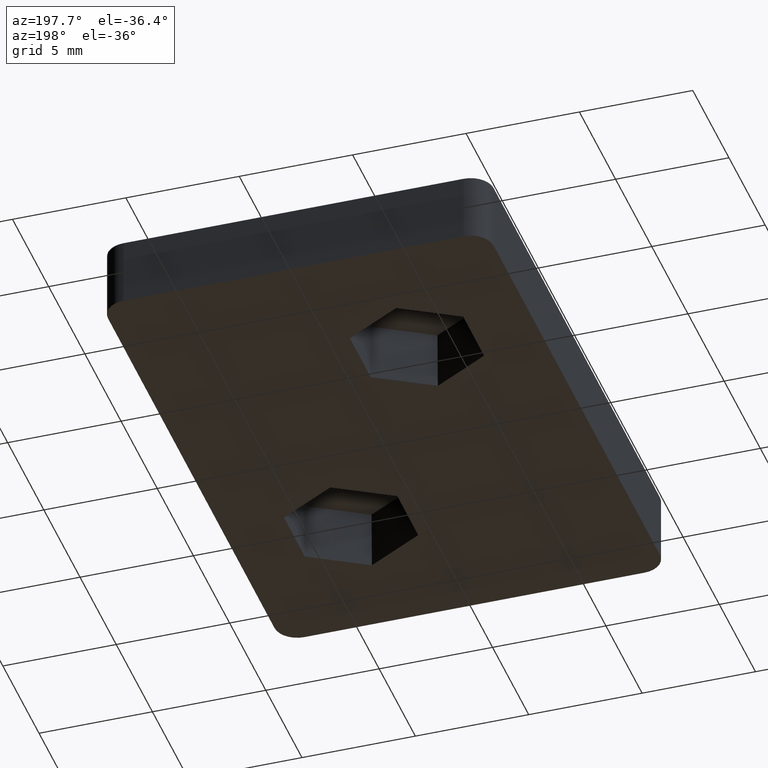
[diagram: clean part render]
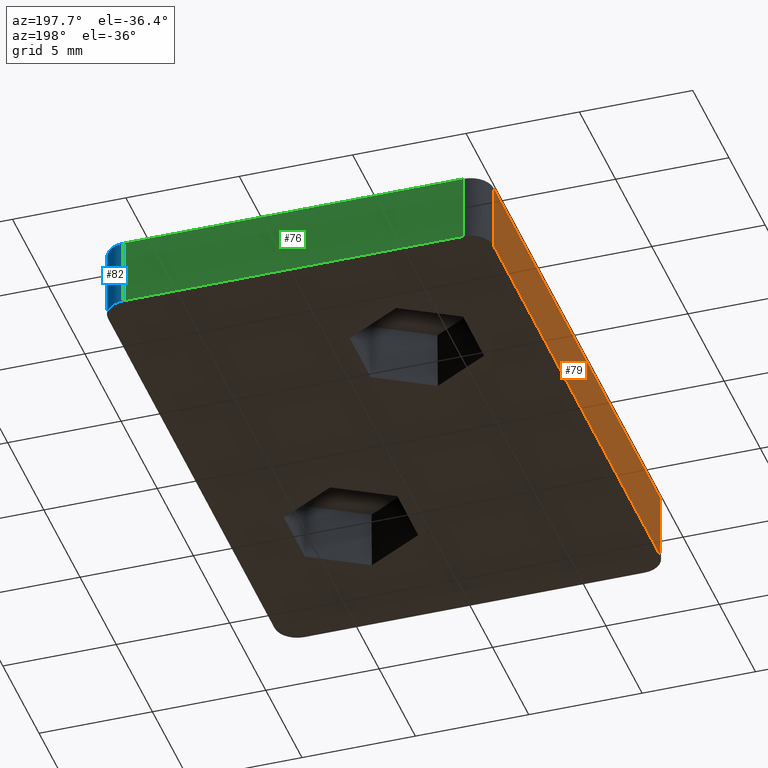
[diagram: same view with three faces highlighted in distinct colors, each labeled with its STEP entity id]
A machine part, auxiliary view with three faces highlighted in distinct colors.
Their STEP definitions:

[orange] entity #79 — the highlighted planar face has unit normal (-1, 0, 0).
#79 = ADVANCED_FACE( '', ( #152 ), #153, .T. );
#152 = FACE_OUTER_BOUND( '', #285, .T. );
#153 = PLANE( '', #286 );
#285 = EDGE_LOOP( '', ( #465, #466, #467, #468 ) );
#286 = AXIS2_PLACEMENT_3D( '', #469, #470, #471 );
#465 = ORIENTED_EDGE( '', *, *, #928, .F. );
#466 = ORIENTED_EDGE( '', *, *, #929, .T. );
#467 = ORIENTED_EDGE( '', *, *, #896, .T. );
#468 = ORIENTED_EDGE( '', *, *, #930, .F. );
#469 = CARTESIAN_POINT( '', ( -8.50000000000001, 11.5000000000000, -51.6702855111600 ) );
#470 = DIRECTION( '', ( -1.00000000000000, 2.74654234174752E-032, 1.12139804483894E-016 ) );
#471 = DIRECTION( '', ( -1.31688608025461E-033, -1.00000000000000, 2.33178017899756E-016 ) );
#896 = EDGE_CURVE( '', #1059, #1057, #1060, .T. );
#928 = EDGE_CURVE( '', #1119, #1120, #1121, .T. );
#929 = EDGE_CURVE( '', #1119, #1059, #1122, .T. );
#930 = EDGE_CURVE( '', #1120, #1057, #1123, .T. );
#1057 = VERTEX_POINT( '', #1317 );
#1059 = VERTEX_POINT( '', #1319 );
#1060 = LINE( '', #1320, #1321 );
#1119 = VERTEX_POINT( '', #1405 );
#1120 = VERTEX_POINT( '', #1406 );
#1121 = LINE( '', #1407, #1408 );
#1122 = LINE( '', #1409, #1410 );
#1123 = LINE( '', #1411, #1412 );
#1317 = CARTESIAN_POINT( '', ( -8.50000000000000, 11.5000000000000, 3.00000000000000 ) );
#1319 = CARTESIAN_POINT( '', ( -8.50000000000001, -11.5000000000000, 3.00000000000000 ) );
#1320 = CARTESIAN_POINT( '', ( -8.50000000000000, 5.38786138100378E-015, 3.00000000000000 ) );
#1321 = VECTOR( '', #1676, 1000.00000000000 );
#1405 = CARTESIAN_POINT( '', ( -8.50000000000001, -11.5000000000000, 7.04148653447866E-016 ) );
#1406 = CARTESIAN_POINT( '', ( -8.50000000000000, 11.5000000000000, -7.04148653447867E-016 ) );
#1407 = CARTESIAN_POINT( '', ( -8.50000000000000, 5.20417042793042E-015, -3.18653008620906E-031 ) );
#1408 = VECTOR( '', #1720, 1000.00000000000 );
#1409 = CARTESIAN_POINT( '', ( -8.50000000000001, -11.5000000000000, -51.6702855111600 ) );
#1410 = VECTOR( '', #1721, 1000.00000000000 );
#1411 = CARTESIAN_POINT( '', ( -8.50000000000000, 11.5000000000000, -51.6702855111600 ) );
#1412 = VECTOR( '', #1722, 1000.00000000000 );
#1676 = DIRECTION( '', ( 2.05990675631064E-032, 1.00000000000000, -6.12303176911189E-017 ) );
#1720 = DIRECTION( '', ( 2.05990675631064E-032, 1.00000000000000, -6.12303176911189E-017 ) );
#1721 = DIRECTION( '', ( 1.12139804483894E-016, 2.33178017899756E-016, 1.00000000000000 ) );
#1722 = DIRECTION( '', ( 1.12139804483894E-016, 2.33178017899756E-016, 1.00000000000000 ) );

[blue] entity #82 — the highlighted cylindrical surface (edge-blend (fillet) strip) has radius 1 mm, axis along (-0, 0, 1).
#82 = ADVANCED_FACE( '', ( #160 ), #161, .T. );
#160 = FACE_OUTER_BOUND( '', #293, .T. );
#161 = CYLINDRICAL_SURFACE( '', #294, 1.00000000000000 );
#293 = EDGE_LOOP( '', ( #502, #503, #504, #505 ) );
#294 = AXIS2_PLACEMENT_3D( '', #506, #507, #508 );
#502 = ORIENTED_EDGE( '', *, *, #944, .F. );
#503 = ORIENTED_EDGE( '', *, *, #920, .F. );
#504 = ORIENTED_EDGE( '', *, *, #893, .T. );
#505 = ORIENTED_EDGE( '', *, *, #949, .T. );
#506 = CARTESIAN_POINT( '', ( 7.50000000000000, 11.5000000000000, 45.6104212075475 ) );
#507 = DIRECTION( '', ( -1.12139804483893E-016, 2.33178017899756E-016, 1.00000000000000 ) );
#508 = DIRECTION( '', ( 1.00000000000000, -6.07153216591882E-017, 1.12139804483893E-016 ) );
#893 = EDGE_CURVE( '', #1052, #1053, #1054, .T. );
#920 = EDGE_CURVE( '', #1052, #1106, #1107, .T. );
#944 = EDGE_CURVE( '', #1106, #1149, #1150, .T. );
#949 = EDGE_CURVE( '', #1053, #1149, #1158, .T. );
#1052 = VERTEX_POINT( '', #1311 );
#1053 = VERTEX_POINT( '', #1312 );
#1054 = CIRCLE( '', #1313, 1.00000000000000 );
#1106 = VERTEX_POINT( '', #1384 );
#1107 = LINE( '', #1385, #1386 );
#1149 = VERTEX_POINT( '', #1450 );
#1150 = CIRCLE( '', #1451, 1.00000000000000 );
#1158 = LINE( '', #1461, #1462 );
#1311 = CARTESIAN_POINT( '', ( 7.50000000000001, 12.5000000000000, 3.00000000000000 ) );
#1312 = CARTESIAN_POINT( '', ( 8.50000000000001, 11.5000000000000, 3.00000000000000 ) );
#1313 = AXIS2_PLACEMENT_3D( '', #1669, #1670, #1671 );
#1384 = CARTESIAN_POINT( '', ( 7.50000000000001, 12.5000000000000, -7.65378971138986E-016 ) );
#1385 = CARTESIAN_POINT( '', ( 7.50000000000000, 12.5000000000000, 45.6104212075475 ) );
#1386 = VECTOR( '', #1712, 1000.00000000000 );
#1450 = CARTESIAN_POINT( '', ( 8.50000000000001, 11.5000000000000, -7.04148653447867E-016 ) );
#1451 = AXIS2_PLACEMENT_3D( '', #1738, #1739, #1740 );
#1461 = CARTESIAN_POINT( '', ( 8.50000000000000, 11.5000000000000, 45.6104212075475 ) );
#1462 = VECTOR( '', #1749, 1000.00000000000 );
#1669 = CARTESIAN_POINT( '', ( 7.50000000000001, 11.5000000000000, 3.00000000000000 ) );
#1670 = DIRECTION( '', ( 0.000000000000000, -6.12303176911189E-017, -1.00000000000000 ) );
#1671 = DIRECTION( '', ( 0.000000000000000, 1.00000000000000, -6.12303176911189E-017 ) );
#1712 = DIRECTION( '', ( 1.12139804483893E-016, -2.33178017899756E-016, -1.00000000000000 ) );
#1738 = CARTESIAN_POINT( '', ( 7.50000000000001, 11.5000000000000, -7.04148653447867E-016 ) );
#1739 = DIRECTION( '', ( 0.000000000000000, -6.12303176911189E-017, -1.00000000000000 ) );
#1740 = DIRECTION( '', ( 0.000000000000000, 1.00000000000000, -6.12303176911189E-017 ) );
#1749 = DIRECTION( '', ( 1.12139804483893E-016, -2.33178017899756E-016, -1.00000000000000 ) );

[green] entity #76 — the highlighted planar face has unit normal (0, -1, 0).
#76 = ADVANCED_FACE( '', ( #146 ), #147, .F. );
#146 = FACE_OUTER_BOUND( '', #279, .T. );
#147 = PLANE( '', #280 );
#279 = EDGE_LOOP( '', ( #444, #445, #446, #447 ) );
#280 = AXIS2_PLACEMENT_3D( '', #448, #449, #450 );
#444 = ORIENTED_EDGE( '', *, *, #894, .T. );
#445 = ORIENTED_EDGE( '', *, *, #920, .T. );
#446 = ORIENTED_EDGE( '', *, *, #921, .F. );
#447 = ORIENTED_EDGE( '', *, *, #922, .T. );
#448 = CARTESIAN_POINT( '', ( -19.5000000000000, 12.5000000000000, -7.65378971138986E-016 ) );
#449 = DIRECTION( '', ( 0.000000000000000, -1.00000000000000, 6.12303176911189E-017 ) );
#450 = DIRECTION( '', ( -1.00000000000000, 0.000000000000000, 0.000000000000000 ) );
#894 = EDGE_CURVE( '', #1055, #1052, #1056, .T. );
#920 = EDGE_CURVE( '', #1052, #1106, #1107, .T. );
#921 = EDGE_CURVE( '', #1108, #1106, #1109, .T. );
#922 = EDGE_CURVE( '', #1108, #1055, #1110, .T. );
#1052 = VERTEX_POINT( '', #1311 );
#1055 = VERTEX_POINT( '', #1314 );
#1056 = LINE( '', #1315, #1316 );
#1106 = VERTEX_POINT( '', #1384 );
#1107 = LINE( '', #1385, #1386 );
#1108 = VERTEX_POINT( '', #1387 );
#1109 = LINE( '', #1388, #1389 );
#1110 = LINE( '', #1390, #1391 );
#1311 = CARTESIAN_POINT( '', ( 7.50000000000001, 12.5000000000000, 3.00000000000000 ) );
#1314 = CARTESIAN_POINT( '', ( -7.50000000000001, 12.5000000000000, 3.00000000000000 ) );
#1315 = CARTESIAN_POINT( '', ( -19.5000000000000, 12.5000000000000, 3.00000000000000 ) );
#1316 = VECTOR( '', #1672, 1000.00000000000 );
#1384 = CARTESIAN_POINT( '', ( 7.50000000000001, 12.5000000000000, -7.65378971138986E-016 ) );
#1385 = CARTESIAN_POINT( '', ( 7.50000000000000, 12.5000000000000, 45.6104212075475 ) );
#1386 = VECTOR( '', #1712, 1000.00000000000 );
#1387 = CARTESIAN_POINT( '', ( -7.50000000000001, 12.5000000000000, -7.65378971138986E-016 ) );
#1388 = CARTESIAN_POINT( '', ( -19.5000000000000, 12.5000000000000, -7.65378971138986E-016 ) );
#1389 = VECTOR( '', #1713, 1000.00000000000 );
#1390 = CARTESIAN_POINT( '', ( -7.50000000000001, 12.5000000000000, -51.6702855111600 ) );
#1391 = VECTOR( '', #1714, 1000.00000000000 );
#1672 = DIRECTION( '', ( 1.00000000000000, 0.000000000000000, 0.000000000000000 ) );
#1712 = DIRECTION( '', ( 1.12139804483893E-016, -2.33178017899756E-016, -1.00000000000000 ) );
#1713 = DIRECTION( '', ( 1.00000000000000, 0.000000000000000, 0.000000000000000 ) );
#1714 = DIRECTION( '', ( 1.12139804483894E-016, 2.33178017899756E-016, 1.00000000000000 ) );